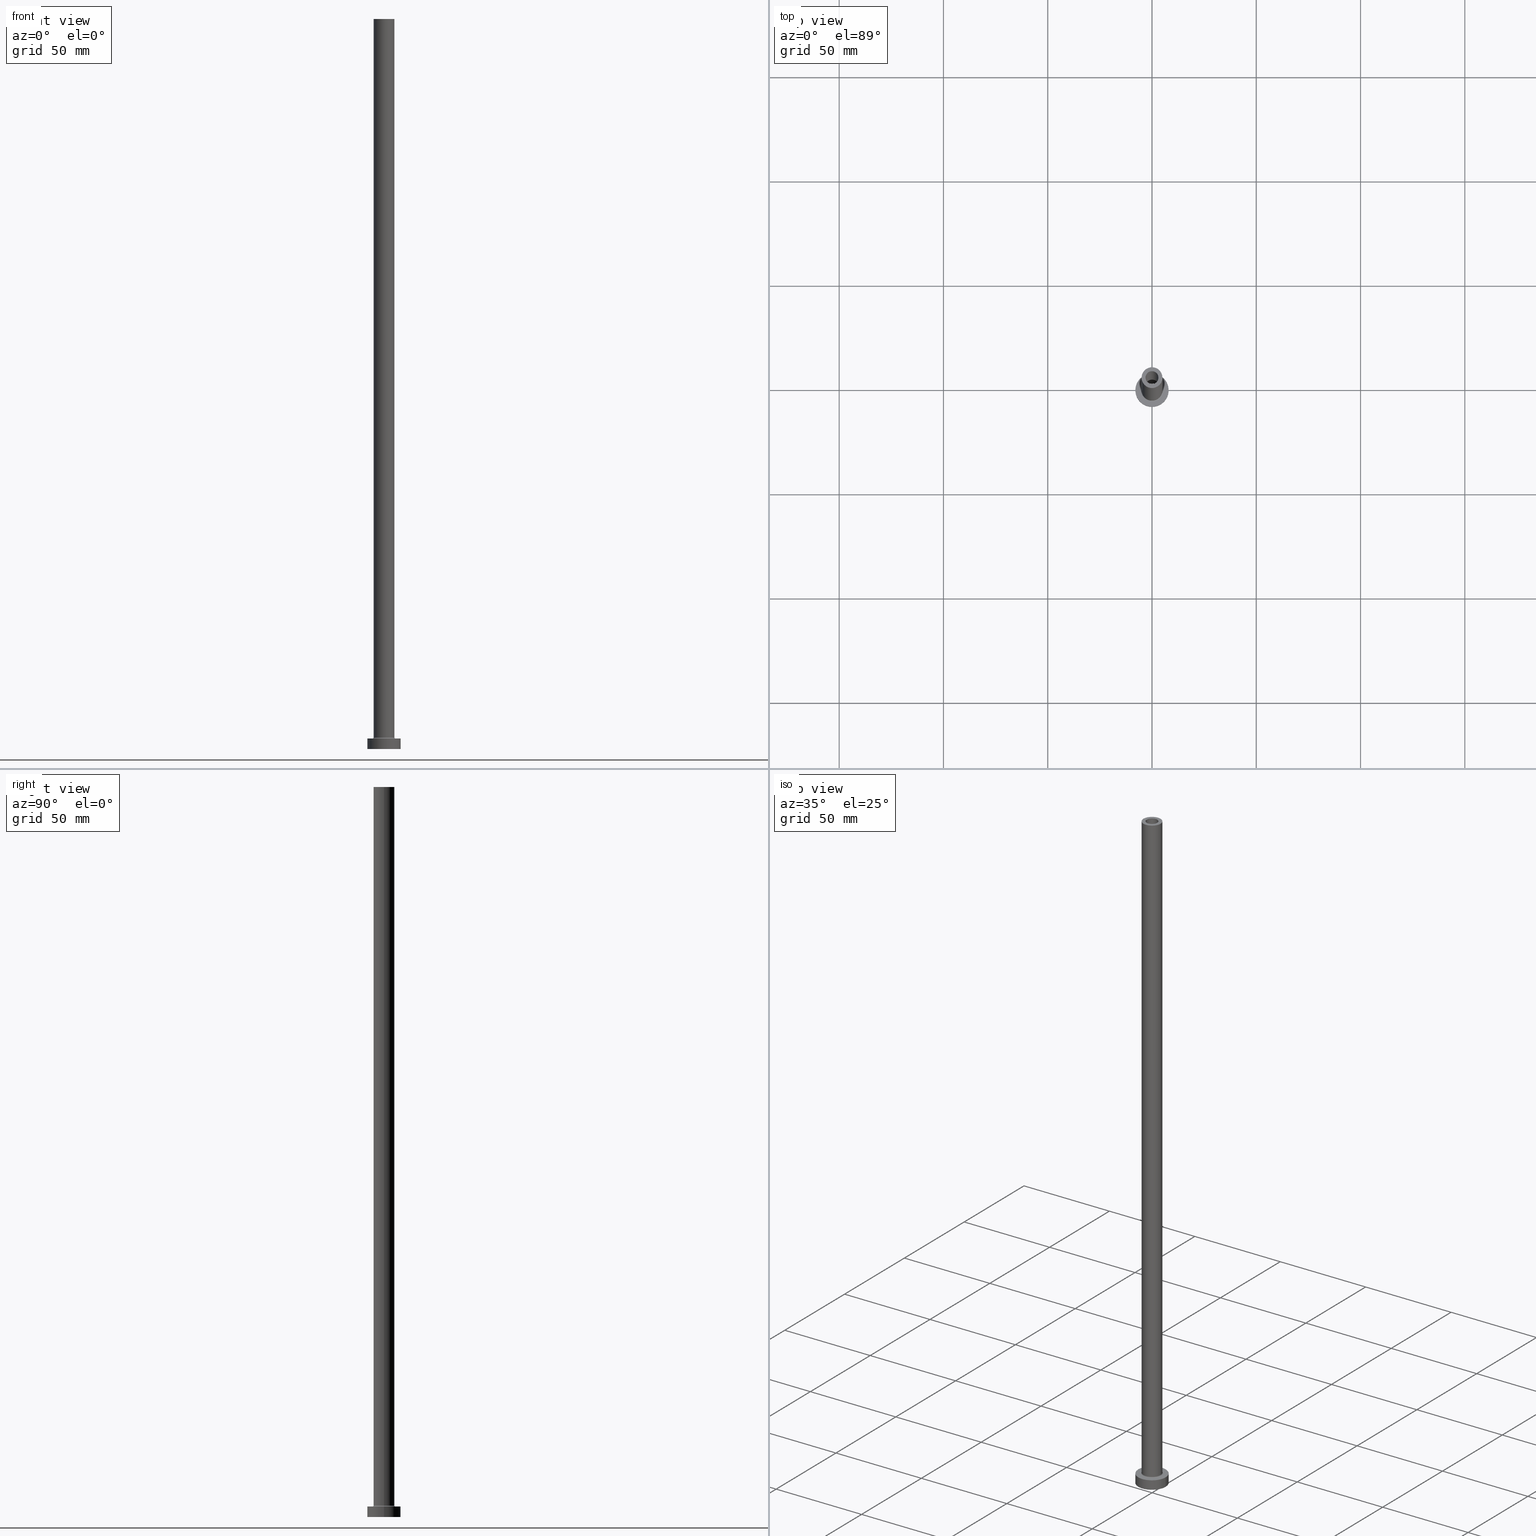
[diagram: canonical four-view strip — front | top / right | iso, engineering-drawing reading convention]
A machine part, canonical four-view strip (front | top / right | iso — engineering-drawing reading convention). The complete STEP part file that produces these views, byte-faithful:
ISO-10303-21;
HEADER;
FILE_DESCRIPTION (( 'STEP AP203' ),
    '1' );
FILE_NAME ('ad9f.STEP',
    '2023-02-13T14:30:48',
    ( '' ),
    ( '' ),
    'SwSTEP 2.0',
    'SolidWorks 2019',
    '' );
FILE_SCHEMA (( 'CONFIG_CONTROL_DESIGN' ));
ENDSEC;

DATA;
#1 = CARTESIAN_POINT ( 'NONE',  ( -3.100000000000000089, 0.000000000000000000, 350.0000000000000000 ) ) ;
#2 = DIRECTION ( 'NONE',  ( 0.000000000000000000, 0.000000000000000000, 1.000000000000000000 ) ) ;
#3 = APPROVAL ( #244, 'NEUR�EN�' ) ;
#4 = DIRECTION ( 'NONE',  ( 1.000000000000000000, 0.000000000000000000, 0.000000000000000000 ) ) ;
#5 = EDGE_CURVE ( 'NONE', #442, #69, #158, .T. ) ;
#6 = DIRECTION ( 'NONE',  ( 1.000000000000000000, 0.000000000000000000, 0.000000000000000000 ) ) ;
#7 = PRODUCT_DEFINITION_FORMATION_WITH_SPECIFIED_SOURCE ( 'LIBOVOLN�', '', #295, .NOT_KNOWN. ) ;
#8 = CC_DESIGN_PERSON_AND_ORGANIZATION_ASSIGNMENT ( #192, #296, ( #194 ) ) ;
#9 = ORIENTED_EDGE ( 'NONE', *, *, #380, .T. ) ;
#10 = DATE_TIME_ROLE ( 'creation_date' ) ;
#11 = ORIENTED_EDGE ( 'NONE', *, *, #91, .T. ) ;
#12 =( NAMED_UNIT ( * ) PLANE_ANGLE_UNIT ( ) SI_UNIT ( $, .RADIAN. ) );
#13 = AXIS2_PLACEMENT_3D ( 'NONE', #427, #249, #175 ) ;
#14 = ORIENTED_EDGE ( 'NONE', *, *, #218, .F. ) ;
#15 =( LENGTH_UNIT ( ) NAMED_UNIT ( * ) SI_UNIT ( .MILLI., .METRE. ) );
#16 = ORIENTED_EDGE ( 'NONE', *, *, #102, .F. ) ;
#17 = CALENDAR_DATE ( 2023, 13, 2 ) ;
#18 = ORIENTED_EDGE ( 'NONE', *, *, #91, .F. ) ;
#19 = AXIS2_PLACEMENT_3D ( 'NONE', #216, #353, #419 ) ;
#20 = EDGE_LOOP ( 'NONE', ( #260, #115 ) ) ;
#21 = AXIS2_PLACEMENT_3D ( 'NONE', #128, #454, #202 ) ;
#22 = EDGE_CURVE ( 'NONE', #371, #248, #392, .T. ) ;
#23 = DIRECTION ( 'NONE',  ( 1.000000000000000000, 0.000000000000000000, 0.000000000000000000 ) ) ;
#24 = FACE_BOUND ( 'NONE', #303, .T. ) ;
#25 = DIRECTION ( 'NONE',  ( 0.000000000000000000, 0.000000000000000000, 1.000000000000000000 ) ) ;
#26 = CARTESIAN_POINT ( 'NONE',  ( 0.000000000000000000, 0.000000000000000000, 314.1923881554250784 ) ) ;
#27 = CARTESIAN_POINT ( 'NONE',  ( -5.000000000000000000, 0.000000000000000000, 350.0000000000000000 ) ) ;
#28 = TOROIDAL_SURFACE ( 'NONE', #189, 5.500000000000000000, 0.5000000000000000000 ) ;
#29 = PERSON_AND_ORGANIZATION_ROLE ( 'classification_officer' ) ;
#30 = SECURITY_CLASSIFICATION ( '', '', #135 ) ;
#31 = DIRECTION ( 'NONE',  ( 1.000000000000000000, 0.000000000000000000, 0.000000000000000000 ) ) ;
#32 = EDGE_CURVE ( 'NONE', #333, #159, #440, .T. ) ;
#33 = DIRECTION ( 'NONE',  ( -0.000000000000000000, -0.000000000000000000, -1.000000000000000000 ) ) ;
#34 = CARTESIAN_POINT ( 'NONE',  ( -3.100000000000000089, 0.000000000000000000, 350.0000000000000000 ) ) ;
#35 = ORIENTED_EDGE ( 'NONE', *, *, #389, .T. ) ;
#36 = DIRECTION ( 'NONE',  ( 0.000000000000000000, 0.000000000000000000, 1.000000000000000000 ) ) ;
#37 = CARTESIAN_POINT ( 'NONE',  ( 0.000000000000000000, 0.000000000000000000, 5.000000000000000000 ) ) ;
#38 = EDGE_LOOP ( 'NONE', ( #270, #414, #151, #224 ) ) ;
#39 = CARTESIAN_POINT ( 'NONE',  ( 3.100000000000000089, 3.796405077356793932E-16, 350.0000000000000000 ) ) ;
#40 = CARTESIAN_POINT ( 'NONE',  ( 0.000000000000000000, 0.000000000000000000, 5.000000000000000000 ) ) ;
#41 = ORIENTED_EDGE ( 'NONE', *, *, #5, .F. ) ;
#42 = CC_DESIGN_SECURITY_CLASSIFICATION ( #30, ( #7 ) ) ;
#43 = CLOSED_SHELL ( 'NONE', ( #90, #394, #421, #456, #137, #385, #255, #450, #86, #204, #375, #235, #409, #417 ) ) ;
#44 = DIRECTION ( 'NONE',  ( 1.000000000000000000, 0.000000000000000000, 0.000000000000000000 ) ) ;
#45 = VERTEX_POINT ( 'NONE', #64 ) ;
#46 = PERSON ( 'NEUR�EN�', 'NEUR�EN�', 'NEUR�EN�', ('NEUR�EN�'), ('NEUR�EN�'), ('NEUR�EN�') ) ;
#47 = EDGE_LOOP ( 'NONE', ( #35, #387, #153, #398 ) ) ;
#48 = CIRCLE ( 'NONE', #305, 8.000000000000000000 ) ;
#49 = EDGE_LOOP ( 'NONE', ( #335, #227, #142, #304 ) ) ;
#50 = CC_DESIGN_APPROVAL ( #185, ( #7 ) ) ;
#51 = CALENDAR_DATE ( 2023, 13, 2 ) ;
#52 = ORIENTED_EDGE ( 'NONE', *, *, #437, .T. ) ;
#53 = EDGE_LOOP ( 'NONE', ( #406, #415 ) ) ;
#54 = CC_DESIGN_PERSON_AND_ORGANIZATION_ASSIGNMENT ( #311, #309, ( #7 ) ) ;
#55 = CC_DESIGN_APPROVAL ( #173, ( #194 ) ) ;
#56 = CARTESIAN_POINT ( 'NONE',  ( 0.000000000000000000, 0.000000000000000000, 305.0000000000000000 ) ) ;
#57 = DIRECTION ( 'NONE',  ( 1.000000000000000000, 0.000000000000000000, 0.000000000000000000 ) ) ;
#58 = CARTESIAN_POINT ( 'NONE',  ( 0.000000000000000000, 0.000000000000000000, 5.000000000000000000 ) ) ;
#59 = CARTESIAN_POINT ( 'NONE',  ( 0.000000000000000000, 0.000000000000000000, 350.0000000000000000 ) ) ;
#60 = EDGE_LOOP ( 'NONE', ( #405, #379 ) ) ;
#61 = EDGE_CURVE ( 'NONE', #370, #439, #93, .T. ) ;
#62 = APPROVAL_PERSON_ORGANIZATION ( #298, #185, #199 ) ;
#63 = VECTOR ( 'NONE', #243, 1000.000000000000000 ) ;
#64 = CARTESIAN_POINT ( 'NONE',  ( -5.000000000000000000, 0.000000000000000000, 5.500000000000005329 ) ) ;
#65 = DIRECTION ( 'NONE',  ( -0.000000000000000000, -0.000000000000000000, -1.000000000000000000 ) ) ;
#66 = ADVANCED_BREP_SHAPE_REPRESENTATION ( 'ad9f', ( #118, #157 ), #231 ) ;
#67 = FACE_OUTER_BOUND ( 'NONE', #155, .T. ) ;
#68 = DIRECTION ( 'NONE',  ( -0.000000000000000000, -0.000000000000000000, -1.000000000000000000 ) ) ;
#69 = VERTEX_POINT ( 'NONE', #354 ) ;
#70 = DIRECTION ( 'NONE',  ( 0.000000000000000000, 0.000000000000000000, 1.000000000000000000 ) ) ;
#71 = AXIS2_PLACEMENT_3D ( 'NONE', #458, #418, #31 ) ;
#72 = FACE_OUTER_BOUND ( 'NONE', #53, .T. ) ;
#73 = CARTESIAN_POINT ( 'NONE',  ( 0.000000000000000000, 0.000000000000000000, 350.0000000000000000 ) ) ;
#74 = CC_DESIGN_PERSON_AND_ORGANIZATION_ASSIGNMENT ( #166, #203, ( #7 ) ) ;
#75 = PERSON_AND_ORGANIZATION ( #46, #146 ) ;
#76 = EDGE_LOOP ( 'NONE', ( #310, #346, #361, #84 ) ) ;
#77 = AXIS2_PLACEMENT_3D ( 'NONE', #112, #223, #339 ) ;
#78 = EDGE_LOOP ( 'NONE', ( #410, #41 ) ) ;
#79 = CYLINDRICAL_SURFACE ( 'NONE', #77, 5.000000000000000000 ) ;
#80 = EDGE_LOOP ( 'NONE', ( #18, #126, #221, #299 ) ) ;
#81 = CC_DESIGN_DATE_AND_TIME_ASSIGNMENT ( #272, #131, ( #30 ) ) ;
#82 = VERTEX_POINT ( 'NONE', #209 ) ;
#83 = AXIS2_PLACEMENT_3D ( 'NONE', #211, #36, #429 ) ;
#84 = ORIENTED_EDGE ( 'NONE', *, *, #276, .F. ) ;
#85 = CIRCLE ( 'NONE', #347, 3.250000000000000444 ) ;
#86 = ADVANCED_FACE ( 'NONE', ( #130 ), #313, .T. ) ;
#87 = CALENDAR_DATE ( 2023, 13, 2 ) ;
#88 = ORIENTED_EDGE ( 'NONE', *, *, #242, .F. ) ;
#89 = CARTESIAN_POINT ( 'NONE',  ( 8.000000000000000000, 9.797174393178825657E-16, 5.000000000000000000 ) ) ;
#90 = ADVANCED_FACE ( 'NONE', ( #416 ), #168, .F. ) ;
#91 = EDGE_CURVE ( 'NONE', #45, #344, #215, .T. ) ;
#92 = CARTESIAN_POINT ( 'NONE',  ( 3.250000000000000444, 3.980102097228898231E-16, 305.0000000000000000 ) ) ;
#93 = CIRCLE ( 'NONE', #340, 3.100000000000000089 ) ;
#94 = DIRECTION ( 'NONE',  ( 1.000000000000000000, 0.000000000000000000, -0.000000000000000000 ) ) ;
#95 = LINE ( 'NONE', #27, #63 ) ;
#96 = CYLINDRICAL_SURFACE ( 'NONE', #207, 3.100000000000000089 ) ;
#97 = CARTESIAN_POINT ( 'NONE',  ( 0.000000000000000000, 0.000000000000000000, 5.000000000000000000 ) ) ;
#98 = PRODUCT_DEFINITION_SHAPE ( 'NONE', 'NONE',  #194 ) ;
#99 = CARTESIAN_POINT ( 'NONE',  ( 0.000000000000000000, 0.000000000000000000, 305.0000000000000000 ) ) ;
#100 = CIRCLE ( 'NONE', #263, 5.000000000000000000 ) ;
#101 = FACE_BOUND ( 'NONE', #195, .T. ) ;
#102 = EDGE_CURVE ( 'NONE', #45, #82, #280, .T. ) ;
#103 = EDGE_CURVE ( 'NONE', #381, #82, #246, .T. ) ;
#104 = PLANE ( 'NONE',  #13 ) ;
#105 = CARTESIAN_POINT ( 'NONE',  ( 0.000000000000000000, 0.000000000000000000, 350.0000000000000000 ) ) ;
#106 = CARTESIAN_POINT ( 'NONE',  ( 0.000000000000000000, 0.000000000000000000, 5.000000000000000000 ) ) ;
#107 = VECTOR ( 'NONE', #289, 1000.000000000000000 ) ;
#108 = DIRECTION ( 'NONE',  ( -1.000000000000000000, 0.000000000000000000, 0.000000000000000000 ) ) ;
#109 = AXIS2_PLACEMENT_3D ( 'NONE', #424, #33, #321 ) ;
#110 = LOCAL_TIME ( 15, 30, 48.00000000000000000, #239 ) ;
#111 = CARTESIAN_POINT ( 'NONE',  ( -3.100000000000000089, 0.000000000000000000, 305.0000000000000000 ) ) ;
#112 = CARTESIAN_POINT ( 'NONE',  ( 0.000000000000000000, 0.000000000000000000, 350.0000000000000000 ) ) ;
#113 = EDGE_LOOP ( 'NONE', ( #308, #233 ) ) ;
#114 = DIRECTION ( 'NONE',  ( 0.000000000000000000, 0.000000000000000000, 1.000000000000000000 ) ) ;
#115 = ORIENTED_EDGE ( 'NONE', *, *, #22, .F. ) ;
#116 = DIRECTION ( 'NONE',  ( 1.000000000000000000, 0.000000000000000000, 0.000000000000000000 ) ) ;
#117 = ORIENTED_EDGE ( 'NONE', *, *, #32, .T. ) ;
#118 = MANIFOLD_SOLID_BREP ( 'Odebrat vysunut�m4', #43 ) ;
#119 = FACE_OUTER_BOUND ( 'NONE', #124, .T. ) ;
#120 = EDGE_CURVE ( 'NONE', #262, #45, #95, .T. ) ;
#121 = ORIENTED_EDGE ( 'NONE', *, *, #238, .F. ) ;
#122 = DIRECTION ( 'NONE',  ( 1.000000000000000000, 0.000000000000000000, -0.000000000000000000 ) ) ;
#123 = LOCAL_TIME ( 15, 30, 48.00000000000000000, #234 ) ;
#124 = EDGE_LOOP ( 'NONE', ( #16, #11, #14, #88 ) ) ;
#125 = SHAPE_DEFINITION_REPRESENTATION ( #98, #66 ) ;
#126 = ORIENTED_EDGE ( 'NONE', *, *, #176, .F. ) ;
#127 = APPROVAL_DATE_TIME ( #162, #185 ) ;
#128 = CARTESIAN_POINT ( 'NONE',  ( -5.500000000000000000, 6.735557395310442023E-16, 5.500000000000005329 ) ) ;
#129 = LINE ( 'NONE', #453, #455 ) ;
#130 = FACE_OUTER_BOUND ( 'NONE', #38, .T. ) ;
#131 = DATE_TIME_ROLE ( 'classification_date' ) ;
#132 = FACE_OUTER_BOUND ( 'NONE', #76, .T. ) ;
#133 = DIRECTION ( 'NONE',  ( 0.000000000000000000, 0.000000000000000000, 1.000000000000000000 ) ) ;
#134 = EDGE_CURVE ( 'NONE', #412, #186, #287, .T. ) ;
#135 = SECURITY_CLASSIFICATION_LEVEL ( 'unclassified' ) ;
#136 = DIRECTION ( 'NONE',  ( 1.000000000000000000, 0.000000000000000000, 0.000000000000000000 ) ) ;
#137 = ADVANCED_FACE ( 'NONE', ( #318 ), #283, .T. ) ;
#138 = CARTESIAN_POINT ( 'NONE',  ( -8.000000000000000000, 0.000000000000000000, 5.000000000000000000 ) ) ;
#139 = VECTOR ( 'NONE', #141, 1000.000000000000000 ) ;
#140 = CIRCLE ( 'NONE', #257, 5.000000000000000000 ) ;
#141 = DIRECTION ( 'NONE',  ( -0.000000000000000000, -0.000000000000000000, -1.000000000000000000 ) ) ;
#142 = ORIENTED_EDGE ( 'NONE', *, *, #176, .T. ) ;
#143 = LINE ( 'NONE', #1, #107 ) ;
#144 = FACE_BOUND ( 'NONE', #20, .T. ) ;
#145 = CARTESIAN_POINT ( 'NONE',  ( 3.250000000000000444, 3.980102097228898231E-16, 314.1923881554250784 ) ) ;
#146 = ORGANIZATION ( 'NEUR�EN�', 'NEUR�EN�', '' ) ;
#147 = DIRECTION ( 'NONE',  ( 1.000000000000000000, 0.000000000000000000, 0.000000000000000000 ) ) ;
#148 = DATE_AND_TIME ( #51, #368 ) ;
#149 = CARTESIAN_POINT ( 'NONE',  ( 0.000000000000000000, 0.000000000000000000, 0.000000000000000000 ) ) ;
#150 = ORIENTED_EDGE ( 'NONE', *, *, #331, .T. ) ;
#151 = ORIENTED_EDGE ( 'NONE', *, *, #120, .T. ) ;
#152 = MECHANICAL_CONTEXT ( 'NONE', #430, 'mechanical' ) ;
#153 = ORIENTED_EDGE ( 'NONE', *, *, #61, .F. ) ;
#154 = CARTESIAN_POINT ( 'NONE',  ( 0.000000000000000000, 0.000000000000000000, 0.000000000000000000 ) ) ;
#155 = EDGE_LOOP ( 'NONE', ( #183, #150, #52, #324 ) ) ;
#156 = EDGE_CURVE ( 'NONE', #371, #439, #174, .T. ) ;
#157 = AXIS2_PLACEMENT_3D ( 'NONE', #372, #336, #44 ) ;
#158 = CIRCLE ( 'NONE', #426, 8.000000000000000000 ) ;
#159 = VERTEX_POINT ( 'NONE', #89 ) ;
#160 = CALENDAR_DATE ( 2023, 13, 2 ) ;
#161 = DIRECTION ( 'NONE',  ( -0.000000000000000000, -0.000000000000000000, -1.000000000000000000 ) ) ;
#162 = DATE_AND_TIME ( #87, #123 ) ;
#163 = PLANE ( 'NONE',  #228 ) ;
#164 = CARTESIAN_POINT ( 'NONE',  ( 0.000000000000000000, 0.000000000000000000, 0.000000000000000000 ) ) ;
#165 = CC_DESIGN_PERSON_AND_ORGANIZATION_ASSIGNMENT ( #388, #29, ( #30 ) ) ;
#166 = PERSON_AND_ORGANIZATION ( #46, #146 ) ;
#167 = DIRECTION ( 'NONE',  ( 0.000000000000000000, 0.000000000000000000, -1.000000000000000000 ) ) ;
#168 = CYLINDRICAL_SURFACE ( 'NONE', #306, 3.100000000000000089 ) ;
#169 = AXIS2_PLACEMENT_3D ( 'NONE', #237, #384, #57 ) ;
#170 = AXIS2_PLACEMENT_3D ( 'NONE', #154, #220, #122 ) ;
#171 = COORDINATED_UNIVERSAL_TIME_OFFSET ( 1, 0, .AHEAD. ) ;
#172 = CARTESIAN_POINT ( 'NONE',  ( 0.000000000000000000, 0.000000000000000000, 350.0000000000000000 ) ) ;
#173 = APPROVAL ( #441, 'NEUR�EN�' ) ;
#174 = LINE ( 'NONE', #460, #348 ) ;
#175 = DIRECTION ( 'NONE',  ( 1.000000000000000000, 0.000000000000000000, -0.000000000000000000 ) ) ;
#176 = EDGE_CURVE ( 'NONE', #82, #45, #140, .T. ) ;
#177 = CARTESIAN_POINT ( 'NONE',  ( 0.000000000000000000, 0.000000000000000000, 350.0000000000000000 ) ) ;
#178 = LINE ( 'NONE', #138, #139 ) ;
#179 = CARTESIAN_POINT ( 'NONE',  ( -3.250000000000000444, 0.000000000000000000, 314.1923881554250784 ) ) ;
#180 = FACE_OUTER_BOUND ( 'NONE', #297, .T. ) ;
#181 = VECTOR ( 'NONE', #396, 1000.000000000000000 ) ;
#182 = CIRCLE ( 'NONE', #407, 5.500000000000000000 ) ;
#183 = ORIENTED_EDGE ( 'NONE', *, *, #134, .T. ) ;
#184 = APPROVAL_DATE_TIME ( #148, #173 ) ;
#185 = APPROVAL ( #438, 'NEUR�EN�' ) ;
#186 = VERTEX_POINT ( 'NONE', #92 ) ;
#187 = FACE_OUTER_BOUND ( 'NONE', #78, .T. ) ;
#188 = ORIENTED_EDGE ( 'NONE', *, *, #331, .F. ) ;
#189 = AXIS2_PLACEMENT_3D ( 'NONE', #367, #114, #443 ) ;
#190 = AXIS2_PLACEMENT_3D ( 'NONE', #99, #133, #358 ) ;
#191 = ORIENTED_EDGE ( 'NONE', *, *, #61, .T. ) ;
#192 = PERSON_AND_ORGANIZATION ( #46, #146 ) ;
#193 = ORIENTED_EDGE ( 'NONE', *, *, #252, .T. ) ;
#194 = PRODUCT_DEFINITION ( 'NEZN�M�', '', #7, #273 ) ;
#195 = EDGE_LOOP ( 'NONE', ( #214, #193 ) ) ;
#196 = CALENDAR_DATE ( 2023, 13, 2 ) ;
#197 = CIRCLE ( 'NONE', #356, 5.000000000000000000 ) ;
#198 = ORIENTED_EDGE ( 'NONE', *, *, #276, .T. ) ;
#199 = APPROVAL_ROLE ( '' ) ;
#200 = EDGE_CURVE ( 'NONE', #69, #442, #376, .T. ) ;
#201 = CARTESIAN_POINT ( 'NONE',  ( 0.000000000000000000, 0.000000000000000000, 350.0000000000000000 ) ) ;
#202 = DIRECTION ( 'NONE',  ( -1.000000000000000000, 1.224646799147351482E-16, 0.000000000000000000 ) ) ;
#203 = PERSON_AND_ORGANIZATION_ROLE ( 'creator' ) ;
#204 = ADVANCED_FACE ( 'NONE', ( #144, #72 ), #286, .T. ) ;
#205 = CARTESIAN_POINT ( 'NONE',  ( 3.250000000000000444, 3.980102097228898231E-16, 0.000000000000000000 ) ) ;
#206 = DIRECTION ( 'NONE',  ( 0.000000000000000000, 0.000000000000000000, 1.000000000000000000 ) ) ;
#207 = AXIS2_PLACEMENT_3D ( 'NONE', #177, #245, #266 ) ;
#208 = DIRECTION ( 'NONE',  ( 0.000000000000000000, 0.000000000000000000, -1.000000000000000000 ) ) ;
#209 = CARTESIAN_POINT ( 'NONE',  ( 5.000000000000000000, 6.123233995736766282E-16, 5.500000000000005329 ) ) ;
#210 = CARTESIAN_POINT ( 'NONE',  ( -3.250000000000000444, 0.000000000000000000, 0.000000000000000000 ) ) ;
#211 = CARTESIAN_POINT ( 'NONE',  ( 0.000000000000000000, 0.000000000000000000, 305.0000000000000000 ) ) ;
#212 = APPROVAL_PERSON_ORGANIZATION ( #75, #173, #377 ) ;
#213 = CARTESIAN_POINT ( 'NONE',  ( 0.000000000000000000, 0.000000000000000000, 305.0000000000000000 ) ) ;
#214 = ORIENTED_EDGE ( 'NONE', *, *, #218, .T. ) ;
#215 = CIRCLE ( 'NONE', #21, 0.5000000000000004441 ) ;
#216 = CARTESIAN_POINT ( 'NONE',  ( 0.000000000000000000, 0.000000000000000000, 5.500000000000005329 ) ) ;
#217 = CARTESIAN_POINT ( 'NONE',  ( 5.500000000000000000, 0.000000000000000000, 5.500000000000005329 ) ) ;
#218 = EDGE_CURVE ( 'NONE', #265, #344, #182, .T. ) ;
#219 = FACE_OUTER_BOUND ( 'NONE', #80, .T. ) ;
#220 = DIRECTION ( 'NONE',  ( 0.000000000000000000, 0.000000000000000000, 1.000000000000000000 ) ) ;
#221 = ORIENTED_EDGE ( 'NONE', *, *, #242, .T. ) ;
#222 = AXIS2_PLACEMENT_3D ( 'NONE', #106, #68, #254 ) ;
#223 = DIRECTION ( 'NONE',  ( -0.000000000000000000, -0.000000000000000000, -1.000000000000000000 ) ) ;
#224 = ORIENTED_EDGE ( 'NONE', *, *, #102, .T. ) ;
#225 = PLANE ( 'NONE',  #170 ) ;
#226 = ORIENTED_EDGE ( 'NONE', *, *, #5, .T. ) ;
#227 = ORIENTED_EDGE ( 'NONE', *, *, #103, .T. ) ;
#228 = AXIS2_PLACEMENT_3D ( 'NONE', #316, #312, #94 ) ;
#229 = PERSON_AND_ORGANIZATION ( #46, #146 ) ;
#230 = AXIS2_PLACEMENT_3D ( 'NONE', #461, #2, #395 ) ;
#231 =( GEOMETRIC_REPRESENTATION_CONTEXT ( 3 ) GLOBAL_UNCERTAINTY_ASSIGNED_CONTEXT ( ( #240 ) ) GLOBAL_UNIT_ASSIGNED_CONTEXT ( ( #15, #12, #369 ) ) REPRESENTATION_CONTEXT ( 'NONE', 'WORKASPACE' ) );
#232 = VERTEX_POINT ( 'NONE', #210 ) ;
#233 = ORIENTED_EDGE ( 'NONE', *, *, #274, .F. ) ;
#234 = COORDINATED_UNIVERSAL_TIME_OFFSET ( 1, 0, .AHEAD. ) ;
#235 = ADVANCED_FACE ( 'NONE', ( #291 ), #288, .F. ) ;
#236 = CARTESIAN_POINT ( 'NONE',  ( 0.000000000000000000, 0.000000000000000000, 5.500000000000005329 ) ) ;
#237 = CARTESIAN_POINT ( 'NONE',  ( 0.000000000000000000, 0.000000000000000000, 0.000000000000000000 ) ) ;
#238 = EDGE_CURVE ( 'NONE', #333, #69, #178, .T. ) ;
#239 = COORDINATED_UNIVERSAL_TIME_OFFSET ( 1, 0, .AHEAD. ) ;
#240 = UNCERTAINTY_MEASURE_WITH_UNIT (LENGTH_MEASURE( 1.000000000000000082E-05 ), #15, 'distance_accuracy_value', 'NONE');
#241 = LINE ( 'NONE', #145, #181 ) ;
#242 = EDGE_CURVE ( 'NONE', #82, #265, #329, .T. ) ;
#243 = DIRECTION ( 'NONE',  ( -0.000000000000000000, -0.000000000000000000, -1.000000000000000000 ) ) ;
#244 = APPROVAL_STATUS ( 'not_yet_approved' ) ;
#245 = DIRECTION ( 'NONE',  ( 0.000000000000000000, 0.000000000000000000, -1.000000000000000000 ) ) ;
#246 = LINE ( 'NONE', #319, #401 ) ;
#247 = LOCAL_TIME ( 15, 30, 48.00000000000000000, #171 ) ;
#248 = VERTEX_POINT ( 'NONE', #34 ) ;
#249 = DIRECTION ( 'NONE',  ( 0.000000000000000000, 0.000000000000000000, 1.000000000000000000 ) ) ;
#250 = CARTESIAN_POINT ( 'NONE',  ( 5.500000000000000000, 0.000000000000000000, 5.000000000000002665 ) ) ;
#251 = CARTESIAN_POINT ( 'NONE',  ( -5.500000000000000000, 6.735557395310442023E-16, 5.000000000000002665 ) ) ;
#252 = EDGE_CURVE ( 'NONE', #344, #265, #322, .T. ) ;
#253 = CIRCLE ( 'NONE', #83, 3.100000000000000089 ) ;
#254 = DIRECTION ( 'NONE',  ( 1.000000000000000000, 0.000000000000000000, 0.000000000000000000 ) ) ;
#255 = ADVANCED_FACE ( 'NONE', ( #101, #400 ), #104, .T. ) ;
#256 = AXIS2_PLACEMENT_3D ( 'NONE', #97, #25, #459 ) ;
#257 = AXIS2_PLACEMENT_3D ( 'NONE', #236, #382, #23 ) ;
#258 = DIRECTION ( 'NONE',  ( 0.000000000000000000, 0.000000000000000000, 1.000000000000000000 ) ) ;
#259 = LINE ( 'NONE', #179, #373 ) ;
#260 = ORIENTED_EDGE ( 'NONE', *, *, #389, .F. ) ;
#261 = APPLICATION_PROTOCOL_DEFINITION ( 'international standard', 'config_control_design', 1994, #430 ) ;
#262 = VERTEX_POINT ( 'NONE', #323 ) ;
#263 = AXIS2_PLACEMENT_3D ( 'NONE', #73, #435, #399 ) ;
#264 = CARTESIAN_POINT ( 'NONE',  ( 3.100000000000000089, 3.796405077356793932E-16, 305.0000000000000000 ) ) ;
#265 = VERTEX_POINT ( 'NONE', #250 ) ;
#266 = DIRECTION ( 'NONE',  ( -1.000000000000000000, 0.000000000000000000, 0.000000000000000000 ) ) ;
#267 = ORIENTED_EDGE ( 'NONE', *, *, #341, .F. ) ;
#268 = ORIENTED_EDGE ( 'NONE', *, *, #274, .T. ) ;
#269 = TOROIDAL_SURFACE ( 'NONE', #19, 5.500000000000000000, 0.5000000000000000000 ) ;
#270 = ORIENTED_EDGE ( 'NONE', *, *, #103, .F. ) ;
#271 = DIRECTION ( 'NONE',  ( 0.000000000000000000, 0.000000000000000000, -1.000000000000000000 ) ) ;
#272 = DATE_AND_TIME ( #160, #110 ) ;
#273 = DESIGN_CONTEXT ( 'detailed design', #404, 'design' ) ;
#274 = EDGE_CURVE ( 'NONE', #186, #412, #391, .T. ) ;
#275 = DIRECTION ( 'NONE',  ( 0.000000000000000000, 0.000000000000000000, 1.000000000000000000 ) ) ;
#276 = EDGE_CURVE ( 'NONE', #439, #370, #253, .T. ) ;
#277 = APPROVAL_ROLE ( '' ) ;
#278 = AXIS2_PLACEMENT_3D ( 'NONE', #428, #397, #431 ) ;
#279 = CARTESIAN_POINT ( 'NONE',  ( 0.000000000000000000, 0.000000000000000000, 0.000000000000000000 ) ) ;
#280 = CIRCLE ( 'NONE', #71, 5.000000000000000000 ) ;
#281 = DIRECTION ( 'NONE',  ( 1.000000000000000000, 0.000000000000000000, 0.000000000000000000 ) ) ;
#282 = CARTESIAN_POINT ( 'NONE',  ( -8.000000000000000000, 0.000000000000000000, 5.000000000000000000 ) ) ;
#283 = CYLINDRICAL_SURFACE ( 'NONE', #109, 8.000000000000000000 ) ;
#284 = CARTESIAN_POINT ( 'NONE',  ( 0.000000000000000000, 0.000000000000000000, 350.0000000000000000 ) ) ;
#285 = CIRCLE ( 'NONE', #433, 3.100000000000000089 ) ;
#286 = PLANE ( 'NONE',  #230 ) ;
#287 = CIRCLE ( 'NONE', #190, 3.250000000000000444 ) ;
#288 = CYLINDRICAL_SURFACE ( 'NONE', #278, 3.250000000000000444 ) ;
#289 = DIRECTION ( 'NONE',  ( 0.000000000000000000, 0.000000000000000000, -1.000000000000000000 ) ) ;
#290 = EDGE_CURVE ( 'NONE', #159, #333, #48, .T. ) ;
#291 = FACE_OUTER_BOUND ( 'NONE', #301, .T. ) ;
#292 = DIRECTION ( 'NONE',  ( 0.000000000000000000, 0.000000000000000000, 1.000000000000000000 ) ) ;
#293 = APPROVAL_PERSON_ORGANIZATION ( #314, #3, #277 ) ;
#294 = DIRECTION ( 'NONE',  ( 1.000000000000000000, 0.000000000000000000, 0.000000000000000000 ) ) ;
#295 = PRODUCT ( 'ad9f', 'ad9f', '', ( #152 ) ) ;
#296 = PERSON_AND_ORGANIZATION_ROLE ( 'creator' ) ;
#297 = EDGE_LOOP ( 'NONE', ( #267, #365, #449, #338 ) ) ;
#298 = PERSON_AND_ORGANIZATION ( #46, #146 ) ;
#299 = ORIENTED_EDGE ( 'NONE', *, *, #252, .F. ) ;
#300 = PERSON_AND_ORGANIZATION_ROLE ( 'design_owner' ) ;
#301 = EDGE_LOOP ( 'NONE', ( #188, #268, #9, #444 ) ) ;
#302 = COORDINATED_UNIVERSAL_TIME_OFFSET ( 1, 0, .AHEAD. ) ;
#303 = EDGE_LOOP ( 'NONE', ( #191, #198 ) ) ;
#304 = ORIENTED_EDGE ( 'NONE', *, *, #120, .F. ) ;
#305 = AXIS2_PLACEMENT_3D ( 'NONE', #40, #70, #294 ) ;
#306 = AXIS2_PLACEMENT_3D ( 'NONE', #284, #208, #349 ) ;
#307 = CC_DESIGN_DATE_AND_TIME_ASSIGNMENT ( #334, #10, ( #194 ) ) ;
#308 = ORIENTED_EDGE ( 'NONE', *, *, #134, .F. ) ;
#309 = PERSON_AND_ORGANIZATION_ROLE ( 'design_supplier' ) ;
#310 = ORIENTED_EDGE ( 'NONE', *, *, #156, .F. ) ;
#311 = PERSON_AND_ORGANIZATION ( #46, #146 ) ;
#312 = DIRECTION ( 'NONE',  ( 0.000000000000000000, 0.000000000000000000, 1.000000000000000000 ) ) ;
#313 = CYLINDRICAL_SURFACE ( 'NONE', #330, 5.000000000000000000 ) ;
#314 = PERSON_AND_ORGANIZATION ( #46, #146 ) ;
#315 = AXIS2_PLACEMENT_3D ( 'NONE', #279, #386, #147 ) ;
#316 = CARTESIAN_POINT ( 'NONE',  ( 0.000000000000000000, 0.000000000000000000, 305.0000000000000000 ) ) ;
#317 = CIRCLE ( 'NONE', #315, 3.250000000000000444 ) ;
#318 = FACE_OUTER_BOUND ( 'NONE', #448, .T. ) ;
#319 = CARTESIAN_POINT ( 'NONE',  ( 5.000000000000000000, 6.123233995736766282E-16, 350.0000000000000000 ) ) ;
#320 = EDGE_CURVE ( 'NONE', #381, #262, #197, .T. ) ;
#321 = DIRECTION ( 'NONE',  ( -1.000000000000000000, 0.000000000000000000, 0.000000000000000000 ) ) ;
#322 = CIRCLE ( 'NONE', #222, 5.500000000000000000 ) ;
#323 = CARTESIAN_POINT ( 'NONE',  ( -5.000000000000000000, 0.000000000000000000, 350.0000000000000000 ) ) ;
#324 = ORIENTED_EDGE ( 'NONE', *, *, #380, .F. ) ;
#325 = DIRECTION ( 'NONE',  ( -1.000000000000000000, 0.000000000000000000, 0.000000000000000000 ) ) ;
#326 = DIRECTION ( 'NONE',  ( 0.000000000000000000, -1.000000000000000000, 0.000000000000000000 ) ) ;
#327 = CARTESIAN_POINT ( 'NONE',  ( 5.000000000000000000, 6.123233995736766282E-16, 350.0000000000000000 ) ) ;
#328 = DIRECTION ( 'NONE',  ( -0.000000000000000000, -0.000000000000000000, -1.000000000000000000 ) ) ;
#329 = CIRCLE ( 'NONE', #378, 0.5000000000000004441 ) ;
#330 = AXIS2_PLACEMENT_3D ( 'NONE', #172, #161, #352 ) ;
#331 = EDGE_CURVE ( 'NONE', #186, #393, #241, .T. ) ;
#332 = APPLICATION_PROTOCOL_DEFINITION ( 'international standard', 'config_control_design', 1994, #404 ) ;
#333 = VERTEX_POINT ( 'NONE', #282 ) ;
#334 = DATE_AND_TIME ( #17, #413 ) ;
#335 = ORIENTED_EDGE ( 'NONE', *, *, #320, .F. ) ;
#336 = DIRECTION ( 'NONE',  ( 0.000000000000000000, 0.000000000000000000, 1.000000000000000000 ) ) ;
#337 = PRODUCT_RELATED_PRODUCT_CATEGORY ( 'detail', '', ( #295 ) ) ;
#338 = ORIENTED_EDGE ( 'NONE', *, *, #200, .T. ) ;
#339 = DIRECTION ( 'NONE',  ( -1.000000000000000000, 0.000000000000000000, 0.000000000000000000 ) ) ;
#340 = AXIS2_PLACEMENT_3D ( 'NONE', #56, #206, #281 ) ;
#341 = EDGE_CURVE ( 'NONE', #159, #442, #129, .T. ) ;
#342 = ORIENTED_EDGE ( 'NONE', *, *, #290, .T. ) ;
#343 = COORDINATED_UNIVERSAL_TIME_OFFSET ( 1, 0, .AHEAD. ) ;
#344 = VERTEX_POINT ( 'NONE', #251 ) ;
#345 = EDGE_CURVE ( 'NONE', #232, #393, #317, .T. ) ;
#346 = ORIENTED_EDGE ( 'NONE', *, *, #22, .T. ) ;
#347 = AXIS2_PLACEMENT_3D ( 'NONE', #149, #411, #116 ) ;
#348 = VECTOR ( 'NONE', #271, 1000.000000000000000 ) ;
#349 = DIRECTION ( 'NONE',  ( -1.000000000000000000, 0.000000000000000000, 0.000000000000000000 ) ) ;
#350 = DATE_AND_TIME ( #196, #247 ) ;
#351 = CYLINDRICAL_SURFACE ( 'NONE', #434, 8.000000000000000000 ) ;
#352 = DIRECTION ( 'NONE',  ( -1.000000000000000000, 0.000000000000000000, 0.000000000000000000 ) ) ;
#353 = DIRECTION ( 'NONE',  ( 0.000000000000000000, 0.000000000000000000, 1.000000000000000000 ) ) ;
#354 = CARTESIAN_POINT ( 'NONE',  ( -8.000000000000000000, 0.000000000000000000, 0.000000000000000000 ) ) ;
#355 = EDGE_CURVE ( 'NONE', #262, #381, #100, .T. ) ;
#356 = AXIS2_PLACEMENT_3D ( 'NONE', #105, #402, #4 ) ;
#357 = ORIENTED_EDGE ( 'NONE', *, *, #290, .F. ) ;
#358 = DIRECTION ( 'NONE',  ( 1.000000000000000000, 0.000000000000000000, 0.000000000000000000 ) ) ;
#359 = EDGE_CURVE ( 'NONE', #248, #370, #143, .T. ) ;
#360 = DIRECTION ( 'NONE',  ( 0.000000000000000000, 0.000000000000000000, -1.000000000000000000 ) ) ;
#361 = ORIENTED_EDGE ( 'NONE', *, *, #359, .T. ) ;
#362 = CYLINDRICAL_SURFACE ( 'NONE', #425, 3.250000000000000444 ) ;
#363 = CC_DESIGN_APPROVAL ( #3, ( #30 ) ) ;
#364 = DIRECTION ( 'NONE',  ( 1.000000000000000000, 0.000000000000000000, 0.000000000000000000 ) ) ;
#365 = ORIENTED_EDGE ( 'NONE', *, *, #32, .F. ) ;
#366 = DIRECTION ( 'NONE',  ( 0.000000000000000000, 0.000000000000000000, -1.000000000000000000 ) ) ;
#367 = CARTESIAN_POINT ( 'NONE',  ( 0.000000000000000000, 0.000000000000000000, 5.500000000000005329 ) ) ;
#368 = LOCAL_TIME ( 15, 30, 48.00000000000000000, #302 ) ;
#369 =( NAMED_UNIT ( * ) SI_UNIT ( $, .STERADIAN. ) SOLID_ANGLE_UNIT ( ) );
#370 = VERTEX_POINT ( 'NONE', #111 ) ;
#371 = VERTEX_POINT ( 'NONE', #39 ) ;
#372 = CARTESIAN_POINT ( 'NONE',  ( 0.000000000000000000, 0.000000000000000000, 0.000000000000000000 ) ) ;
#373 = VECTOR ( 'NONE', #366, 1000.000000000000000 ) ;
#374 = ORIENTED_EDGE ( 'NONE', *, *, #341, .T. ) ;
#375 = ADVANCED_FACE ( 'NONE', ( #219 ), #269, .F. ) ;
#376 = CIRCLE ( 'NONE', #169, 8.000000000000000000 ) ;
#377 = APPROVAL_ROLE ( '' ) ;
#378 = AXIS2_PLACEMENT_3D ( 'NONE', #217, #326, #360 ) ;
#379 = ORIENTED_EDGE ( 'NONE', *, *, #437, .F. ) ;
#380 = EDGE_CURVE ( 'NONE', #412, #232, #259, .T. ) ;
#381 = VERTEX_POINT ( 'NONE', #327 ) ;
#382 = DIRECTION ( 'NONE',  ( 0.000000000000000000, 0.000000000000000000, 1.000000000000000000 ) ) ;
#383 = AXIS2_PLACEMENT_3D ( 'NONE', #59, #275, #136 ) ;
#384 = DIRECTION ( 'NONE',  ( 0.000000000000000000, 0.000000000000000000, 1.000000000000000000 ) ) ;
#385 = ADVANCED_FACE ( 'NONE', ( #180 ), #351, .T. ) ;
#386 = DIRECTION ( 'NONE',  ( -0.000000000000000000, -0.000000000000000000, -1.000000000000000000 ) ) ;
#387 = ORIENTED_EDGE ( 'NONE', *, *, #156, .T. ) ;
#388 = PERSON_AND_ORGANIZATION ( #46, #146 ) ;
#389 = EDGE_CURVE ( 'NONE', #248, #371, #285, .T. ) ;
#390 = EDGE_LOOP ( 'NONE', ( #117, #342 ) ) ;
#391 = CIRCLE ( 'NONE', #447, 3.250000000000000444 ) ;
#392 = CIRCLE ( 'NONE', #383, 3.100000000000000089 ) ;
#393 = VERTEX_POINT ( 'NONE', #205 ) ;
#394 = ADVANCED_FACE ( 'NONE', ( #67 ), #362, .F. ) ;
#395 = DIRECTION ( 'NONE',  ( 1.000000000000000000, 0.000000000000000000, -0.000000000000000000 ) ) ;
#396 = DIRECTION ( 'NONE',  ( 0.000000000000000000, 0.000000000000000000, -1.000000000000000000 ) ) ;
#397 = DIRECTION ( 'NONE',  ( 0.000000000000000000, 0.000000000000000000, -1.000000000000000000 ) ) ;
#398 = ORIENTED_EDGE ( 'NONE', *, *, #359, .F. ) ;
#399 = DIRECTION ( 'NONE',  ( 1.000000000000000000, 0.000000000000000000, 0.000000000000000000 ) ) ;
#400 = FACE_OUTER_BOUND ( 'NONE', #390, .T. ) ;
#401 = VECTOR ( 'NONE', #420, 1000.000000000000000 ) ;
#402 = DIRECTION ( 'NONE',  ( 0.000000000000000000, 0.000000000000000000, 1.000000000000000000 ) ) ;
#403 = DIRECTION ( 'NONE',  ( -0.000000000000000000, -0.000000000000000000, -1.000000000000000000 ) ) ;
#404 = APPLICATION_CONTEXT ( 'configuration controlled 3d designs of mechanical parts and assemblies' ) ;
#405 = ORIENTED_EDGE ( 'NONE', *, *, #345, .F. ) ;
#406 = ORIENTED_EDGE ( 'NONE', *, *, #355, .T. ) ;
#407 = AXIS2_PLACEMENT_3D ( 'NONE', #37, #65, #364 ) ;
#408 = FACE_OUTER_BOUND ( 'NONE', #49, .T. ) ;
#409 = ADVANCED_FACE ( 'NONE', ( #24, #422 ), #163, .F. ) ;
#410 = ORIENTED_EDGE ( 'NONE', *, *, #200, .F. ) ;
#411 = DIRECTION ( 'NONE',  ( -0.000000000000000000, -0.000000000000000000, -1.000000000000000000 ) ) ;
#412 = VERTEX_POINT ( 'NONE', #457 ) ;
#413 = LOCAL_TIME ( 15, 30, 48.00000000000000000, #343 ) ;
#414 = ORIENTED_EDGE ( 'NONE', *, *, #355, .F. ) ;
#415 = ORIENTED_EDGE ( 'NONE', *, *, #320, .T. ) ;
#416 = FACE_OUTER_BOUND ( 'NONE', #47, .T. ) ;
#417 = ADVANCED_FACE ( 'NONE', ( #132 ), #96, .F. ) ;
#418 = DIRECTION ( 'NONE',  ( 0.000000000000000000, 0.000000000000000000, 1.000000000000000000 ) ) ;
#419 = DIRECTION ( 'NONE',  ( 1.000000000000000000, 0.000000000000000000, 0.000000000000000000 ) ) ;
#420 = DIRECTION ( 'NONE',  ( -0.000000000000000000, -0.000000000000000000, -1.000000000000000000 ) ) ;
#421 = ADVANCED_FACE ( 'NONE', ( #119 ), #28, .F. ) ;
#422 = FACE_OUTER_BOUND ( 'NONE', #113, .T. ) ;
#423 = DIRECTION ( 'NONE',  ( 1.000000000000000000, 0.000000000000000000, 0.000000000000000000 ) ) ;
#424 = CARTESIAN_POINT ( 'NONE',  ( 0.000000000000000000, 0.000000000000000000, 5.000000000000000000 ) ) ;
#425 = AXIS2_PLACEMENT_3D ( 'NONE', #26, #167, #108 ) ;
#426 = AXIS2_PLACEMENT_3D ( 'NONE', #164, #451, #423 ) ;
#427 = CARTESIAN_POINT ( 'NONE',  ( 0.000000000000000000, 0.000000000000000000, 5.000000000000000000 ) ) ;
#428 = CARTESIAN_POINT ( 'NONE',  ( 0.000000000000000000, 0.000000000000000000, 314.1923881554250784 ) ) ;
#429 = DIRECTION ( 'NONE',  ( 1.000000000000000000, 0.000000000000000000, 0.000000000000000000 ) ) ;
#430 = APPLICATION_CONTEXT ( 'configuration controlled 3d designs of mechanical parts and assemblies' ) ;
#431 = DIRECTION ( 'NONE',  ( -1.000000000000000000, 0.000000000000000000, 0.000000000000000000 ) ) ;
#432 = DIRECTION ( 'NONE',  ( 1.000000000000000000, 0.000000000000000000, 0.000000000000000000 ) ) ;
#433 = AXIS2_PLACEMENT_3D ( 'NONE', #201, #292, #432 ) ;
#434 = AXIS2_PLACEMENT_3D ( 'NONE', #58, #403, #325 ) ;
#435 = DIRECTION ( 'NONE',  ( 0.000000000000000000, 0.000000000000000000, 1.000000000000000000 ) ) ;
#436 = FACE_BOUND ( 'NONE', #60, .T. ) ;
#437 = EDGE_CURVE ( 'NONE', #393, #232, #85, .T. ) ;
#438 = APPROVAL_STATUS ( 'not_yet_approved' ) ;
#439 = VERTEX_POINT ( 'NONE', #264 ) ;
#440 = CIRCLE ( 'NONE', #256, 8.000000000000000000 ) ;
#441 = APPROVAL_STATUS ( 'not_yet_approved' ) ;
#442 = VERTEX_POINT ( 'NONE', #445 ) ;
#443 = DIRECTION ( 'NONE',  ( 1.000000000000000000, 0.000000000000000000, 0.000000000000000000 ) ) ;
#444 = ORIENTED_EDGE ( 'NONE', *, *, #345, .T. ) ;
#445 = CARTESIAN_POINT ( 'NONE',  ( 8.000000000000000000, 9.797174393178825657E-16, 0.000000000000000000 ) ) ;
#446 = CC_DESIGN_PERSON_AND_ORGANIZATION_ASSIGNMENT ( #229, #300, ( #295 ) ) ;
#447 = AXIS2_PLACEMENT_3D ( 'NONE', #213, #258, #6 ) ;
#448 = EDGE_LOOP ( 'NONE', ( #357, #374, #226, #121 ) ) ;
#449 = ORIENTED_EDGE ( 'NONE', *, *, #238, .T. ) ;
#450 = ADVANCED_FACE ( 'NONE', ( #436, #187 ), #225, .F. ) ;
#451 = DIRECTION ( 'NONE',  ( 0.000000000000000000, 0.000000000000000000, 1.000000000000000000 ) ) ;
#452 = APPROVAL_DATE_TIME ( #350, #3 ) ;
#453 = CARTESIAN_POINT ( 'NONE',  ( 8.000000000000000000, 9.797174393178825657E-16, 5.000000000000000000 ) ) ;
#454 = DIRECTION ( 'NONE',  ( 1.224646799147353207E-16, 1.000000000000000000, -0.000000000000000000 ) ) ;
#455 = VECTOR ( 'NONE', #328, 1000.000000000000000 ) ;
#456 = ADVANCED_FACE ( 'NONE', ( #408 ), #79, .T. ) ;
#457 = CARTESIAN_POINT ( 'NONE',  ( -3.250000000000000444, 0.000000000000000000, 305.0000000000000000 ) ) ;
#458 = CARTESIAN_POINT ( 'NONE',  ( 0.000000000000000000, 0.000000000000000000, 5.500000000000005329 ) ) ;
#459 = DIRECTION ( 'NONE',  ( 1.000000000000000000, 0.000000000000000000, 0.000000000000000000 ) ) ;
#460 = CARTESIAN_POINT ( 'NONE',  ( 3.100000000000000089, 3.796405077356793932E-16, 350.0000000000000000 ) ) ;
#461 = CARTESIAN_POINT ( 'NONE',  ( 0.000000000000000000, 0.000000000000000000, 350.0000000000000000 ) ) ;
ENDSEC;
END-ISO-10303-21;
